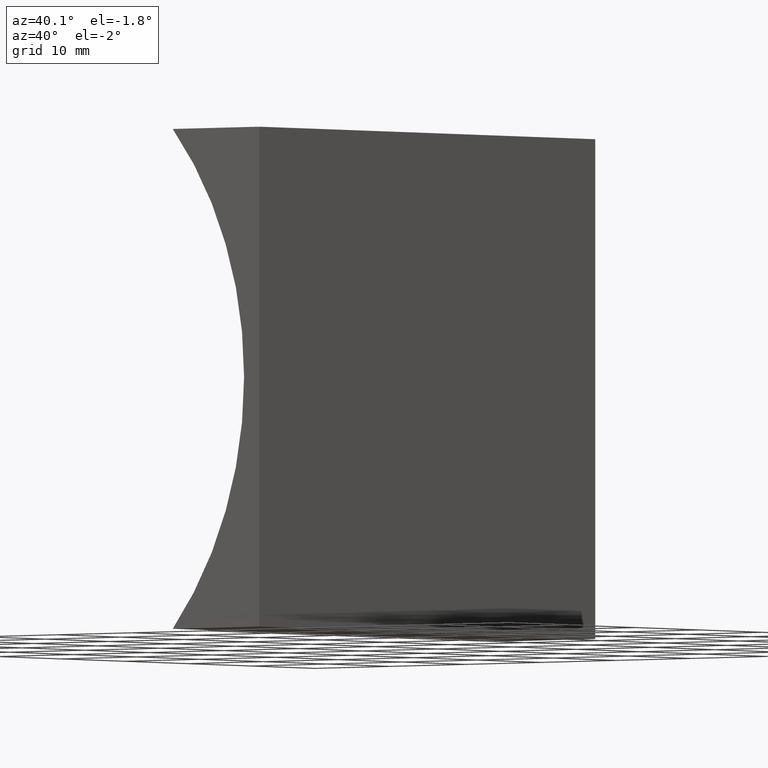
[diagram: clean part render]
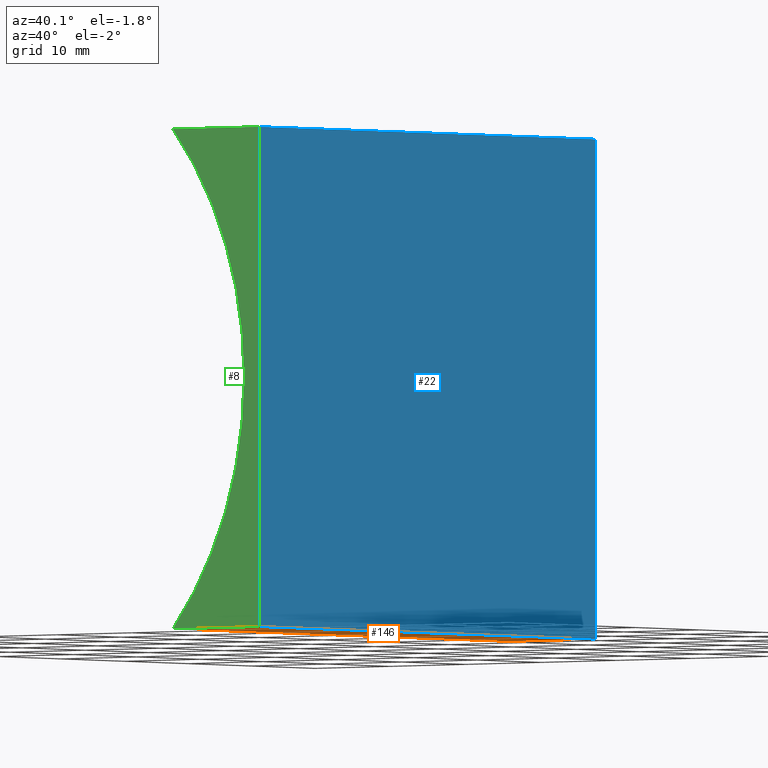
[diagram: same view with three faces highlighted in distinct colors, each labeled with its STEP entity id]
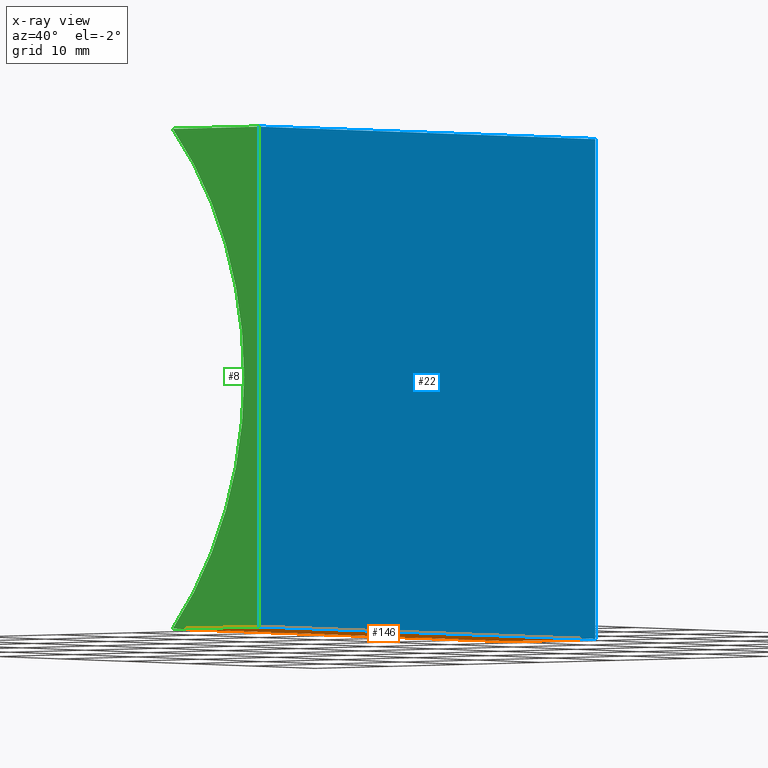
[diagram: x-ray of the same camera — body ghosted, the three highlighted faces saturated]
A machine part, auxiliary view with three faces highlighted in distinct colors.
The next image is the same camera in x-ray (body ghosted, the three faces saturated) — at least one of them is partly hidden behind the body in this view.
Their STEP definitions:

[orange] entity #146 — the highlighted planar face has unit normal (0, -0, 1).
#4 = VERTEX_POINT ( 'NONE', #181 ) ;
#11 = DIRECTION ( 'NONE',  ( -0.0000000000000000000, -1.000000000000000000, -0.0000000000000000000 ) ) ;
#16 = CARTESIAN_POINT ( 'NONE',  ( 0.0000000000000000000, 53.00000000000000000, 0.0000000000000000000 ) ) ;
#17 = EDGE_LOOP ( 'NONE', ( #112, #61, #59, #92 ) ) ;
#25 = DIRECTION ( 'NONE',  ( -0.0000000000000000000, -1.000000000000000000, -0.0000000000000000000 ) ) ;
#28 = LINE ( 'NONE', #118, #64 ) ;
#43 = EDGE_CURVE ( 'NONE', #4, #172, #145, .T. ) ;
#59 = ORIENTED_EDGE ( 'NONE', *, *, #43, .F. ) ;
#61 = ORIENTED_EDGE ( 'NONE', *, *, #96, .F. ) ;
#64 = VECTOR ( 'NONE', #131, 1000.000000000000000 ) ;
#68 = CARTESIAN_POINT ( 'NONE',  ( -11.46946983090827900, 53.00000000000000000, 0.0000000000000000000 ) ) ;
#82 = EDGE_CURVE ( 'NONE', #178, #119, #28, .T. ) ;
#91 = CARTESIAN_POINT ( 'NONE',  ( 0.0000000000000000000, 0.0000000000000000000, 0.0000000000000000000 ) ) ;
#92 = ORIENTED_EDGE ( 'NONE', *, *, #106, .T. ) ;
#93 = DIRECTION ( 'NONE',  ( 1.000000000000000000, 0.0000000000000000000, -0.0000000000000000000 ) ) ;
#96 = EDGE_CURVE ( 'NONE', #172, #119, #192, .T. ) ;
#106 = EDGE_CURVE ( 'NONE', #4, #178, #152, .T. ) ;
#109 = VECTOR ( 'NONE', #25, 1000.000000000000000 ) ;
#112 = ORIENTED_EDGE ( 'NONE', *, *, #82, .T. ) ;
#113 = VECTOR ( 'NONE', #11, 1000.000000000000000 ) ;
#117 = CARTESIAN_POINT ( 'NONE',  ( -11.46946983090827900, 0.0000000000000000000, 0.0000000000000000000 ) ) ;
#118 = CARTESIAN_POINT ( 'NONE',  ( 0.0000000000000000000, 0.0000000000000000000, 0.0000000000000000000 ) ) ;
#119 = VERTEX_POINT ( 'NONE', #117 ) ;
#123 = DIRECTION ( 'NONE',  ( -1.000000000000000000, 0.0000000000000000000, 0.0000000000000000000 ) ) ;
#131 = DIRECTION ( 'NONE',  ( -1.000000000000000000, 0.0000000000000000000, 0.0000000000000000000 ) ) ;
#132 = PLANE ( 'NONE',  #202 ) ;
#143 = VECTOR ( 'NONE', #123, 1000.000000000000000 ) ;
#145 = LINE ( 'NONE', #16, #143 ) ;
#146 = ADVANCED_FACE ( 'NONE', ( #159 ), #132, .F. ) ;
#149 = CARTESIAN_POINT ( 'NONE',  ( 0.0000000000000000000, 53.00000000000000000, 0.0000000000000000000 ) ) ;
#151 = CARTESIAN_POINT ( 'NONE',  ( 0.0000000000000000000, 53.00000000000000000, 0.0000000000000000000 ) ) ;
#152 = LINE ( 'NONE', #149, #113 ) ;
#159 = FACE_OUTER_BOUND ( 'NONE', #17, .T. ) ;
#169 = CARTESIAN_POINT ( 'NONE',  ( -11.46946983090827900, 53.00000000000000000, 0.0000000000000000000 ) ) ;
#172 = VERTEX_POINT ( 'NONE', #68 ) ;
#174 = DIRECTION ( 'NONE',  ( 0.0000000000000000000, -0.0000000000000000000, 1.000000000000000000 ) ) ;
#178 = VERTEX_POINT ( 'NONE', #91 ) ;
#181 = CARTESIAN_POINT ( 'NONE',  ( 0.0000000000000000000, 53.00000000000000000, 0.0000000000000000000 ) ) ;
#192 = LINE ( 'NONE', #169, #109 ) ;
#202 = AXIS2_PLACEMENT_3D ( 'NONE', #151, #174, #93 ) ;

[blue] entity #22 — the highlighted planar face has unit normal (-1, 0, 0).
#2 = EDGE_CURVE ( 'NONE', #50, #4, #37, .T. ) ;
#4 = VERTEX_POINT ( 'NONE', #181 ) ;
#5 = EDGE_CURVE ( 'NONE', #195, #178, #94, .T. ) ;
#7 = ORIENTED_EDGE ( 'NONE', *, *, #2, .F. ) ;
#11 = DIRECTION ( 'NONE',  ( -0.0000000000000000000, -1.000000000000000000, -0.0000000000000000000 ) ) ;
#20 = ORIENTED_EDGE ( 'NONE', *, *, #184, .T. ) ;
#22 = ADVANCED_FACE ( 'NONE', ( #107 ), #58, .F. ) ;
#30 = LINE ( 'NONE', #73, #83 ) ;
#31 = DIRECTION ( 'NONE',  ( 6.123233995736766000E-017, 0.0000000000000000000, 1.000000000000000000 ) ) ;
#37 = LINE ( 'NONE', #48, #204 ) ;
#47 = DIRECTION ( 'NONE',  ( -1.000000000000000000, 0.0000000000000000000, 6.123233995736766000E-017 ) ) ;
#48 = CARTESIAN_POINT ( 'NONE',  ( 0.0000000000000000000, 53.00000000000000000, 0.0000000000000000000 ) ) ;
#49 = ORIENTED_EDGE ( 'NONE', *, *, #106, .F. ) ;
#50 = VERTEX_POINT ( 'NONE', #150 ) ;
#53 = VECTOR ( 'NONE', #164, 1000.000000000000000 ) ;
#58 = PLANE ( 'NONE',  #127 ) ;
#73 = CARTESIAN_POINT ( 'NONE',  ( 3.110602869834276900E-015, 53.00000000000000000, 50.79999999999999700 ) ) ;
#77 = DIRECTION ( 'NONE',  ( -0.0000000000000000000, -1.000000000000000000, -0.0000000000000000000 ) ) ;
#83 = VECTOR ( 'NONE', #77, 1000.000000000000000 ) ;
#91 = CARTESIAN_POINT ( 'NONE',  ( 0.0000000000000000000, 0.0000000000000000000, 0.0000000000000000000 ) ) ;
#94 = LINE ( 'NONE', #161, #53 ) ;
#97 = EDGE_LOOP ( 'NONE', ( #191, #49, #7, #20 ) ) ;
#100 = CARTESIAN_POINT ( 'NONE',  ( 3.110602869834276900E-015, 0.0000000000000000000, 50.79999999999999700 ) ) ;
#106 = EDGE_CURVE ( 'NONE', #4, #178, #152, .T. ) ;
#107 = FACE_OUTER_BOUND ( 'NONE', #97, .T. ) ;
#113 = VECTOR ( 'NONE', #11, 1000.000000000000000 ) ;
#127 = AXIS2_PLACEMENT_3D ( 'NONE', #157, #47, #31 ) ;
#149 = CARTESIAN_POINT ( 'NONE',  ( 0.0000000000000000000, 53.00000000000000000, 0.0000000000000000000 ) ) ;
#150 = CARTESIAN_POINT ( 'NONE',  ( 3.110602869834276900E-015, 53.00000000000000000, 50.79999999999999700 ) ) ;
#152 = LINE ( 'NONE', #149, #113 ) ;
#156 = DIRECTION ( 'NONE',  ( -6.123233995736766000E-017, -0.0000000000000000000, -1.000000000000000000 ) ) ;
#157 = CARTESIAN_POINT ( 'NONE',  ( 0.0000000000000000000, 53.00000000000000000, 0.0000000000000000000 ) ) ;
#161 = CARTESIAN_POINT ( 'NONE',  ( 0.0000000000000000000, 0.0000000000000000000, 0.0000000000000000000 ) ) ;
#164 = DIRECTION ( 'NONE',  ( -6.123233995736766000E-017, -0.0000000000000000000, -1.000000000000000000 ) ) ;
#178 = VERTEX_POINT ( 'NONE', #91 ) ;
#181 = CARTESIAN_POINT ( 'NONE',  ( 0.0000000000000000000, 53.00000000000000000, 0.0000000000000000000 ) ) ;
#184 = EDGE_CURVE ( 'NONE', #50, #195, #30, .T. ) ;
#191 = ORIENTED_EDGE ( 'NONE', *, *, #5, .T. ) ;
#195 = VERTEX_POINT ( 'NONE', #100 ) ;
#204 = VECTOR ( 'NONE', #156, 1000.000000000000000 ) ;

[green] entity #8 — the highlighted planar face has unit normal (0, 1, 0).
#5 = EDGE_CURVE ( 'NONE', #195, #178, #94, .T. ) ;
#8 = ADVANCED_FACE ( 'NONE', ( #116 ), #63, .F. ) ;
#10 = CARTESIAN_POINT ( 'NONE',  ( 3.110602869834276900E-015, 0.0000000000000000000, 50.79999999999999700 ) ) ;
#15 = EDGE_CURVE ( 'NONE', #119, #142, #62, .T. ) ;
#28 = LINE ( 'NONE', #118, #64 ) ;
#32 = CARTESIAN_POINT ( 'NONE',  ( -40.79999999999999000, 0.0000000000000000000, 25.39999999999999900 ) ) ;
#53 = VECTOR ( 'NONE', #164, 1000.000000000000000 ) ;
#62 = CIRCLE ( 'NONE', #199, 38.79999999999998300 ) ;
#63 = PLANE ( 'NONE',  #165 ) ;
#64 = VECTOR ( 'NONE', #131, 1000.000000000000000 ) ;
#66 = VECTOR ( 'NONE', #134, 1000.000000000000000 ) ;
#79 = DIRECTION ( 'NONE',  ( -0.0000000000000000000, -1.000000000000000000, -0.0000000000000000000 ) ) ;
#82 = EDGE_CURVE ( 'NONE', #178, #119, #28, .T. ) ;
#90 = EDGE_LOOP ( 'NONE', ( #102, #163, #95, #180 ) ) ;
#91 = CARTESIAN_POINT ( 'NONE',  ( 0.0000000000000000000, 0.0000000000000000000, 0.0000000000000000000 ) ) ;
#94 = LINE ( 'NONE', #161, #53 ) ;
#95 = ORIENTED_EDGE ( 'NONE', *, *, #124, .F. ) ;
#100 = CARTESIAN_POINT ( 'NONE',  ( 3.110602869834276900E-015, 0.0000000000000000000, 50.79999999999999700 ) ) ;
#102 = ORIENTED_EDGE ( 'NONE', *, *, #82, .F. ) ;
#110 = LINE ( 'NONE', #10, #66 ) ;
#114 = DIRECTION ( 'NONE',  ( 0.0000000000000000000, -0.0000000000000000000, 1.000000000000000000 ) ) ;
#116 = FACE_OUTER_BOUND ( 'NONE', #90, .T. ) ;
#117 = CARTESIAN_POINT ( 'NONE',  ( -11.46946983090827900, 0.0000000000000000000, 0.0000000000000000000 ) ) ;
#118 = CARTESIAN_POINT ( 'NONE',  ( 0.0000000000000000000, 0.0000000000000000000, 0.0000000000000000000 ) ) ;
#119 = VERTEX_POINT ( 'NONE', #117 ) ;
#124 = EDGE_CURVE ( 'NONE', #142, #195, #110, .T. ) ;
#129 = DIRECTION ( 'NONE',  ( 0.0000000000000000000, 1.000000000000000000, 0.0000000000000000000 ) ) ;
#131 = DIRECTION ( 'NONE',  ( -1.000000000000000000, 0.0000000000000000000, 0.0000000000000000000 ) ) ;
#134 = DIRECTION ( 'NONE',  ( 1.000000000000000000, -0.0000000000000000000, -0.0000000000000000000 ) ) ;
#142 = VERTEX_POINT ( 'NONE', #186 ) ;
#161 = CARTESIAN_POINT ( 'NONE',  ( 0.0000000000000000000, 0.0000000000000000000, 0.0000000000000000000 ) ) ;
#163 = ORIENTED_EDGE ( 'NONE', *, *, #5, .F. ) ;
#164 = DIRECTION ( 'NONE',  ( -6.123233995736766000E-017, -0.0000000000000000000, -1.000000000000000000 ) ) ;
#165 = AXIS2_PLACEMENT_3D ( 'NONE', #32, #129, #114 ) ;
#177 = DIRECTION ( 'NONE',  ( 0.0000000000000000000, 0.0000000000000000000, 1.000000000000000000 ) ) ;
#178 = VERTEX_POINT ( 'NONE', #91 ) ;
#180 = ORIENTED_EDGE ( 'NONE', *, *, #15, .F. ) ;
#186 = CARTESIAN_POINT ( 'NONE',  ( -11.46946983090826900, 0.0000000000000000000, 50.79999999999999700 ) ) ;
#194 = CARTESIAN_POINT ( 'NONE',  ( -40.79999999999999000, 0.0000000000000000000, 25.39999999999999900 ) ) ;
#195 = VERTEX_POINT ( 'NONE', #100 ) ;
#199 = AXIS2_PLACEMENT_3D ( 'NONE', #194, #79, #177 ) ;